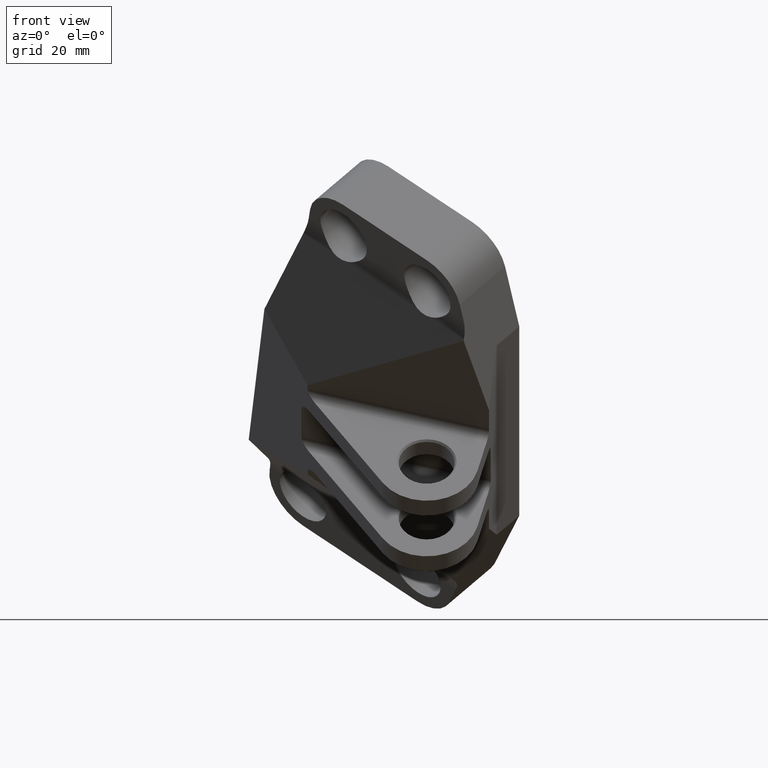
[diagram: clean part render]
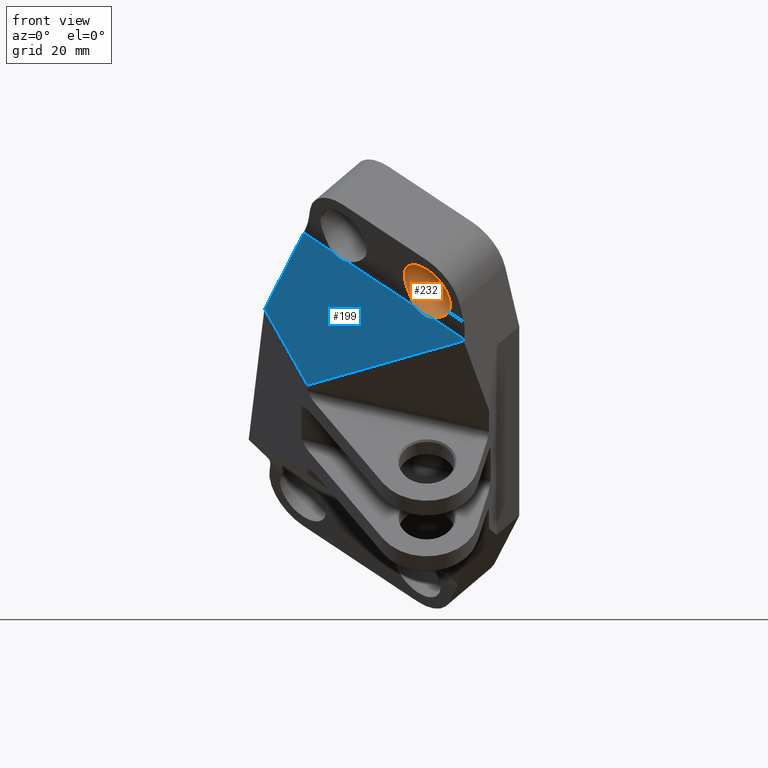
[diagram: same view with the hole feature highlighted: cylindrical wall and planar end face, labeled with their STEP entity ids]
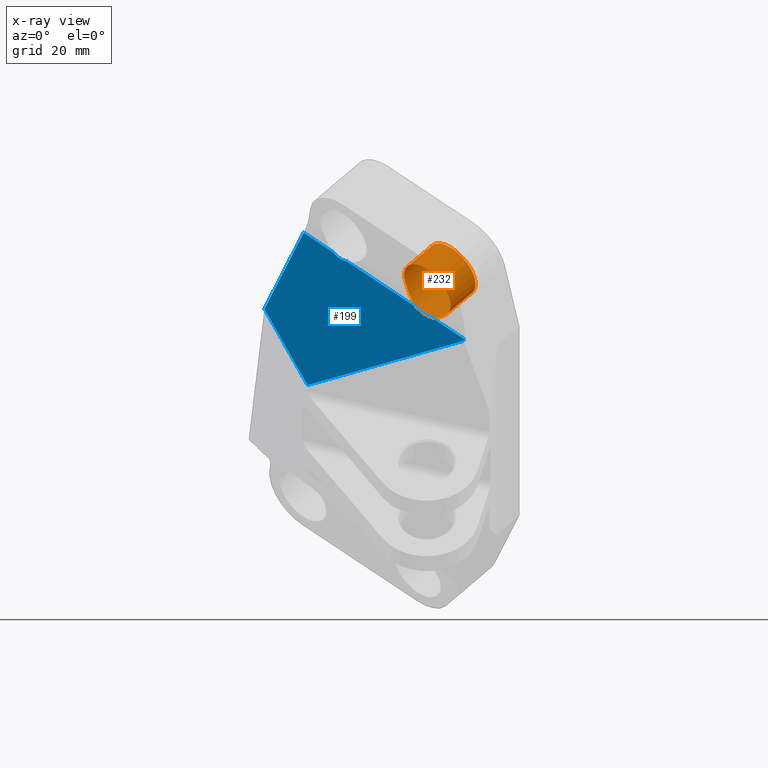
[diagram: x-ray of the same camera — body ghosted, the hole faces saturated]
A machine part, front view. The highlighted faces form one hole feature of diameter 21.082 mm: the cylindrical wall (entity #232, orange) and its adjacent planar end face (entity #199, blue) — they share a circular edge in the B-rep.
The next image is the same camera in x-ray (body ghosted, the hole faces saturated) — the bore reads through the body.
Wall:
#110=ELLIPSE('',#1151,0.479200723427392,0.415);
#126=B_SPLINE_CURVE_WITH_KNOTS('',3,(#1674,#1675,#1676,#1677),.UNSPECIFIED.,
 .F.,.F.,(4,4),(0.,1.),.UNSPECIFIED.);
#128=B_SPLINE_CURVE_WITH_KNOTS('',3,(#1696,#1697,#1698,#1699),.UNSPECIFIED.,
 .F.,.F.,(4,4),(0.,1.),.UNSPECIFIED.);
#149=CYLINDRICAL_SURFACE('',#1211,0.415);
#232=ADVANCED_FACE('',(#301,#302),#149,.F.);
#301=FACE_BOUND('',#389,.T.);
#302=FACE_BOUND('',#390,.T.);
#389=EDGE_LOOP('',(#804));
#390=EDGE_LOOP('',(#805,#806,#807,#808));
#804=ORIENTED_EDGE('',*,*,#1066,.T.);
#805=ORIENTED_EDGE('',*,*,#998,.F.);
#806=ORIENTED_EDGE('',*,*,#1001,.F.);
#807=ORIENTED_EDGE('',*,*,#1007,.F.);
#808=ORIENTED_EDGE('',*,*,#987,.F.);
#875=VERTEX_POINT('',#1649);
#876=VERTEX_POINT('',#1651);
#883=VERTEX_POINT('',#1673);
#884=VERTEX_POINT('',#1684);
#928=VERTEX_POINT('',#1830);
#987=EDGE_CURVE('',#875,#876,#1089,.T.);
#998=EDGE_CURVE('',#883,#875,#126,.T.);
#1001=EDGE_CURVE('',#884,#883,#110,.T.);
#1007=EDGE_CURVE('',#876,#884,#128,.T.);
#1066=EDGE_CURVE('',#928,#928,#1106,.T.);
#1089=CIRCLE('',#1145,0.415);
#1106=CIRCLE('',#1210,0.415);
#1145=AXIS2_PLACEMENT_3D('',#1650,#1319,#1320);
#1151=AXIS2_PLACEMENT_3D('',#1686,#1339,#1340);
#1210=AXIS2_PLACEMENT_3D('',#1829,#1495,#1496);
#1211=AXIS2_PLACEMENT_3D('',#1831,#1497,#1498);
#1319=DIRECTION('',(0.,-0.662599371078657,-0.748974013865747));
#1320=DIRECTION('',(0.,0.748974013865747,-0.662599371078657));
#1339=DIRECTION('',(-0.500000000000003,-0.573827887885706,-0.648630522782132));
#1340=DIRECTION('',(-0.866025403784436,0.331299685539351,0.37448700693286));
#1495=DIRECTION('',(4.77569372936415E-015,-0.662599371078666,-0.748974013865739));
#1496=DIRECTION('',(0.,0.748974013865739,-0.662599371078667));
#1497=DIRECTION('',(-4.77569372936415E-015,0.662599371078666,0.748974013865739));
#1498=DIRECTION('',(0.,-0.748974013865739,0.662599371078667));
#1649=CARTESIAN_POINT('',(-0.144563111858889,-0.225273187466776,1.42212973228335));
#1650=CARTESIAN_POINT('',(-5.90726510332604E-013,-0.516629380056042,1.67988557747358));
#1651=CARTESIAN_POINT('',(-0.144563111858889,-0.807985572645266,1.93764142266387));
#1673=CARTESIAN_POINT('',(-0.39456311186002,-0.375905225127787,1.64482903618221));
#1674=CARTESIAN_POINT('',(-0.394563111860018,-0.375905225127763,1.64482903618223));
#1675=CARTESIAN_POINT('',(-0.355541068505706,-0.301181076601324,1.54864203941166));
#1676=CARTESIAN_POINT('',(-0.264601647899251,-0.258684029804202,1.45168750426192));
#1677=CARTESIAN_POINT('',(-0.14456311185889,-0.225273187466776,1.42212973228335));
#1684=CARTESIAN_POINT('',(-0.39456311186002,-0.568582051791339,1.81528560984858));
#1686=CARTESIAN_POINT('',(-5.89958512777317E-013,-0.623184516536841,1.55944020467144));
#1696=CARTESIAN_POINT('',(-0.144563111858889,-0.807985572645266,1.93764142266387));
#1697=CARTESIAN_POINT('',(-0.264603254152067,-0.774574283232937,1.90808325516812));
#1698=CARTESIAN_POINT('',(-0.355567601487276,-0.673091006880714,1.87768230003845));
#1699=CARTESIAN_POINT('',(-0.39456311186002,-0.56858205179132,1.8152856098486));
#1829=CARTESIAN_POINT('',(-5.88305843269762E-013,-0.852482674744476,1.3002513653503));
#1830=CARTESIAN_POINT('',(-5.88305843269762E-013,-0.541658458990195,1.02527262635266));
#1831=CARTESIAN_POINT('',(-5.87828273896826E-013,-0.918742611852343,1.22535396396373));
End face:
#110=ELLIPSE('',#1151,0.479200723427392,0.415);
#111=ELLIPSE('',#1152,0.479200723427392,0.415);
#167=FACE_OUTER_BOUND('',#342,.T.);
#199=ADVANCED_FACE('',(#167),#248,.F.);
#248=PLANE('',#1153);
#342=EDGE_LOOP('',(#640,#641,#642,#643,#644,#645,#646,#647,#648));
#446=LINE('',#1662,#520);
#447=LINE('',#1671,#521);
#448=LINE('',#1683,#522);
#449=LINE('',#1688,#523);
#450=LINE('',#1690,#524);
#451=LINE('',#1692,#525);
#452=LINE('',#1694,#526);
#520=VECTOR('',#1330,1.);
#521=VECTOR('',#1335,1.);
#522=VECTOR('',#1338,1.);
#523=VECTOR('',#1343,1.);
#524=VECTOR('',#1344,1.);
#525=VECTOR('',#1345,1.);
#526=VECTOR('',#1346,1.);
#640=ORIENTED_EDGE('',*,*,#1000,.F.);
#641=ORIENTED_EDGE('',*,*,#1001,.T.);
#642=ORIENTED_EDGE('',*,*,#997,.F.);
#643=ORIENTED_EDGE('',*,*,#1002,.T.);
#644=ORIENTED_EDGE('',*,*,#994,.F.);
#645=ORIENTED_EDGE('',*,*,#1003,.T.);
#646=ORIENTED_EDGE('',*,*,#1004,.T.);
#647=ORIENTED_EDGE('',*,*,#1005,.T.);
#648=ORIENTED_EDGE('',*,*,#1006,.T.);
#880=VERTEX_POINT('',#1663);
#881=VERTEX_POINT('',#1664);
#882=VERTEX_POINT('',#1672);
#883=VERTEX_POINT('',#1673);
#884=VERTEX_POINT('',#1684);
#885=VERTEX_POINT('',#1685);
#886=VERTEX_POINT('',#1689);
#887=VERTEX_POINT('',#1691);
#888=VERTEX_POINT('',#1693);
#994=EDGE_CURVE('',#880,#881,#446,.T.);
#997=EDGE_CURVE('',#882,#883,#447,.T.);
#1000=EDGE_CURVE('',#884,#885,#448,.T.);
#1001=EDGE_CURVE('',#884,#883,#110,.T.);
#1002=EDGE_CURVE('',#882,#881,#111,.T.);
#1003=EDGE_CURVE('',#880,#886,#449,.T.);
#1004=EDGE_CURVE('',#886,#887,#450,.T.);
#1005=EDGE_CURVE('',#887,#888,#451,.T.);
#1006=EDGE_CURVE('',#888,#885,#452,.T.);
#1151=AXIS2_PLACEMENT_3D('',#1686,#1339,#1340);
#1152=AXIS2_PLACEMENT_3D('',#1687,#1341,#1342);
#1153=AXIS2_PLACEMENT_3D('',#1695,#1347,#1348);
#1330=DIRECTION('',(0.,-0.748974013865747,0.662599371078657));
#1335=DIRECTION('',(0.,-0.748974013865747,0.662599371078657));
#1338=DIRECTION('',(0.,-0.748974013865747,0.662599371078657));
#1339=DIRECTION('',(-0.500000000000003,-0.573827887885706,-0.648630522782132));
#1340=DIRECTION('',(-0.866025403784436,0.331299685539351,0.37448700693286));
#1341=DIRECTION('',(-0.500000000000003,-0.573827887885706,-0.648630522782132));
#1342=DIRECTION('',(-0.866025403784436,0.331299685539351,0.37448700693286));
#1343=DIRECTION('',(-0.861017202782086,0.409815724076576,0.301165152055983));
#1344=DIRECTION('',(-0.430836289233119,-0.48489635324851,0.761088443274586));
#1345=DIRECTION('',(0.590661858214399,-0.773696364658983,0.229156070319308));
#1346=DIRECTION('',(0.846532163116805,-0.165826630280924,-0.505850596024614));
#1347=DIRECTION('',(-0.5,-0.573827887885707,-0.648630522782133));
#1348=DIRECTION('',(0.,0.748974013865747,-0.662599371078657));
#1662=CARTESIAN_POINT('',(-0.39456311186002,3.08665584129769,-1.41841580604299));
#1663=CARTESIAN_POINT('',(-0.39456311186002,1.14224046574722,0.30176190520447));
#1664=CARTESIAN_POINT('',(-0.39456311186002,0.747580592387933,0.650908042502526));
#1671=CARTESIAN_POINT('',(-0.39456311186002,3.08665584129769,-1.41841580604299));
#1672=CARTESIAN_POINT('',(-0.39456311186002,0.554903765724349,0.821364616168921));
#1673=CARTESIAN_POINT('',(-0.39456311186002,-0.375905225127787,1.64482903618221));
#1683=CARTESIAN_POINT('',(-0.39456311186002,3.08665584129769,-1.41841580604299));
#1684=CARTESIAN_POINT('',(-0.39456311186002,-0.568582051791339,1.81528560984858));
#1685=CARTESIAN_POINT('',(-0.39456311186002,-1.0077503194524,2.20380725754633));
#1686=CARTESIAN_POINT('',(-5.89958512777317E-013,-0.623184516536841,1.55944020467144));
#1687=CARTESIAN_POINT('',(-5.98056051664209E-013,0.500301300978864,0.565519210991772));
#1688=CARTESIAN_POINT('',(-5.10348451094479,3.38353137904157,1.94884052871247));
#1689=CARTESIAN_POINT('',(-1.49894450239873,1.66788949779667,0.688050574390984));
#1690=CARTESIAN_POINT('',(-0.732248558258541,2.53078818264457,-0.666346529969171));
#1691=CARTESIAN_POINT('',(-2.01364335185974,1.08860775816167,1.59728537164721));
#1692=CARTESIAN_POINT('',(-3.5696441327625,3.12678261378954,0.993611680165967));
#1693=CARTESIAN_POINT('',(-0.416505229939533,-1.00345209233134,2.21691890763142));
#1694=CARTESIAN_POINT('',(-0.634682599618128,-0.960713470464754,2.3472921613595));
#1695=CARTESIAN_POINT('',(-2.11345832414,3.74422251407067,-0.675130539277069));